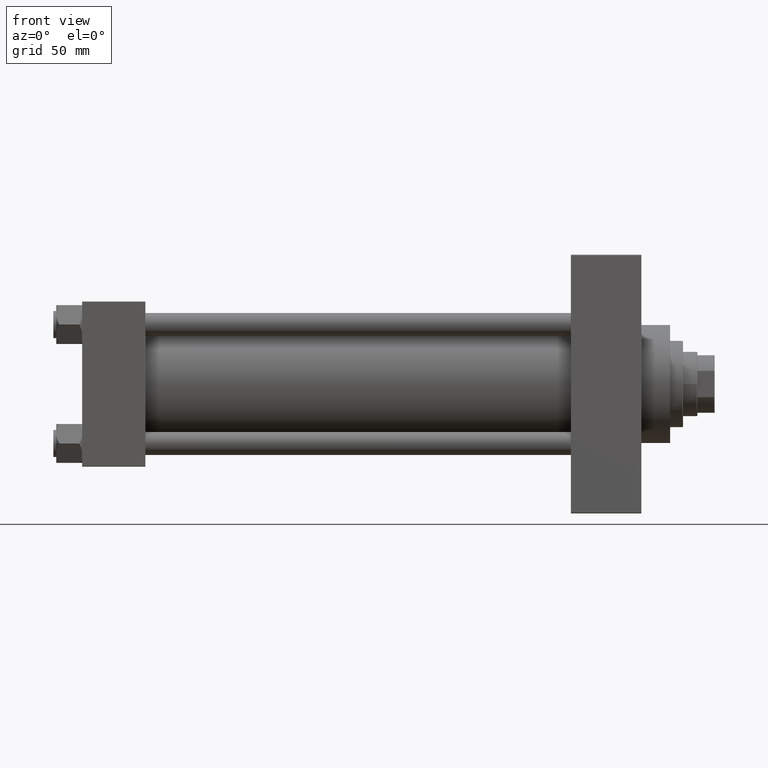
[diagram: clean part render]
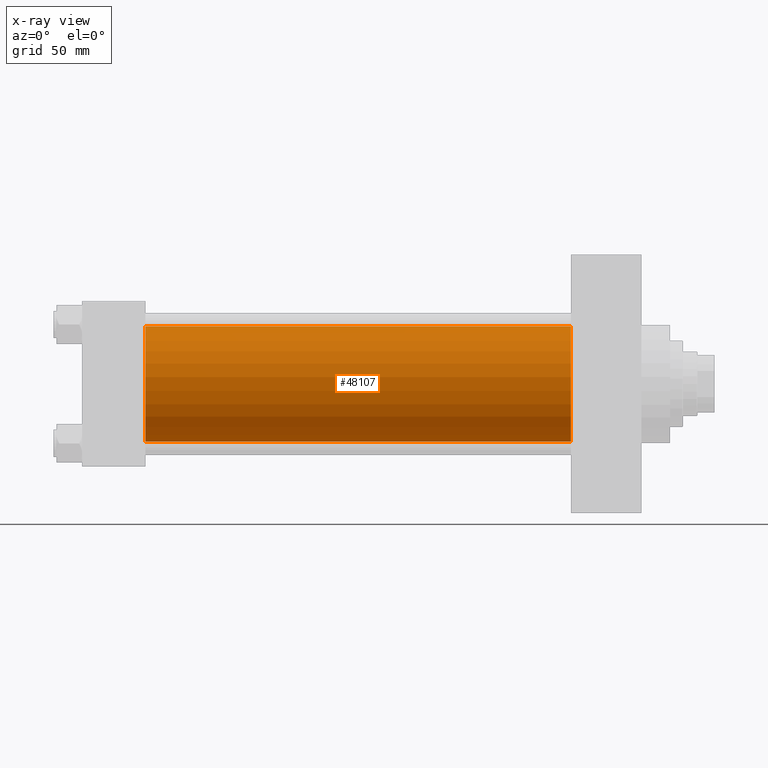
[diagram: x-ray — body ghosted, one internal face saturated and labeled with its STEP entity id]
A machine part, front view, then the same camera in x-ray: the body is ghosted and one INTERNAL B-rep face — a face not visible from any outside direction — is saturated and labeled: STEP entity #48107.
In plain terms, the highlighted cylindrical surface (partial cylindrical patch) has radius 40 mm, axis along (-1, -0, -0).
Its self-contained STEP definition (entity closure, byte-faithful):
#1495 = LINE ( 'NONE', #9824, #8665 ) ;
#3901 = CIRCLE ( 'NONE', #16797, 40.00000000000000000 ) ;
#3945 = CIRCLE ( 'NONE', #38523, 40.00000000000000000 ) ;
#3998 = CARTESIAN_POINT ( 'NONE',  ( 44.00000000000000000, -2.602085213965210642E-15, 0.000000000000000000 ) ) ;
#4036 = FACE_OUTER_BOUND ( 'NONE', #24165, .T. ) ;
#5162 = EDGE_CURVE ( 'NONE', #13358, #20477, #1495, .T. ) ;
#6267 = VERTEX_POINT ( 'NONE', #38922 ) ;
#8035 = CARTESIAN_POINT ( 'NONE',  ( 339.9999999999999432, -2.602085213965210642E-15, 40.00000000000000000 ) ) ;
#8146 = EDGE_CURVE ( 'NONE', #6267, #20477, #3945, .T. ) ;
#8530 = ORIENTED_EDGE ( 'NONE', *, *, #46573, .F. ) ;
#8665 = VECTOR ( 'NONE', #22158, 1000.000000000000000 ) ;
#9824 = CARTESIAN_POINT ( 'NONE',  ( 339.9999999999999432, 2.296501982624201990E-15, -40.00000000000000000 ) ) ;
#10241 = EDGE_CURVE ( 'NONE', #25499, #13358, #3901, .T. ) ;
#13358 = VERTEX_POINT ( 'NONE', #40729 ) ;
#13974 = DIRECTION ( 'NONE',  ( 0.000000000000000000, 0.000000000000000000, -1.000000000000000000 ) ) ;
#14217 = CARTESIAN_POINT ( 'NONE',  ( 339.9999999999999432, -2.602085213965210642E-15, 0.000000000000000000 ) ) ;
#15113 = LINE ( 'NONE', #8035, #39460 ) ;
#16744 = CARTESIAN_POINT ( 'NONE',  ( 339.9999999999999432, -2.602085213965210642E-15, 40.00000000000000000 ) ) ;
#16797 = AXIS2_PLACEMENT_3D ( 'NONE', #14217, #44417, #13974 ) ;
#20477 = VERTEX_POINT ( 'NONE', #45318 ) ;
#22158 = DIRECTION ( 'NONE',  ( -1.000000000000000000, -0.000000000000000000, -0.000000000000000000 ) ) ;
#23407 = DIRECTION ( 'NONE',  ( -1.000000000000000000, -0.000000000000000000, -0.000000000000000000 ) ) ;
#23705 = CARTESIAN_POINT ( 'NONE',  ( 339.9999999999999432, -2.602085213965210642E-15, 0.000000000000000000 ) ) ;
#24165 = EDGE_LOOP ( 'NONE', ( #25068, #42086, #48778, #8530 ) ) ;
#24212 = CYLINDRICAL_SURFACE ( 'NONE', #29086, 40.00000000000000000 ) ;
#25068 = ORIENTED_EDGE ( 'NONE', *, *, #10241, .T. ) ;
#25499 = VERTEX_POINT ( 'NONE', #16744 ) ;
#26939 = DIRECTION ( 'NONE',  ( 1.000000000000000000, 0.000000000000000000, 0.000000000000000000 ) ) ;
#27715 = DIRECTION ( 'NONE',  ( 0.000000000000000000, 0.000000000000000000, 1.000000000000000000 ) ) ;
#27921 = DIRECTION ( 'NONE',  ( 0.000000000000000000, 0.000000000000000000, -1.000000000000000000 ) ) ;
#29086 = AXIS2_PLACEMENT_3D ( 'NONE', #23705, #31971, #27715 ) ;
#31971 = DIRECTION ( 'NONE',  ( -1.000000000000000000, -0.000000000000000000, -0.000000000000000000 ) ) ;
#38523 = AXIS2_PLACEMENT_3D ( 'NONE', #3998, #26939, #27921 ) ;
#38922 = CARTESIAN_POINT ( 'NONE',  ( 44.00000000000000000, -2.602085213965210642E-15, 40.00000000000000000 ) ) ;
#39460 = VECTOR ( 'NONE', #23407, 1000.000000000000000 ) ;
#40729 = CARTESIAN_POINT ( 'NONE',  ( 339.9999999999999432, 2.296501982624201990E-15, -40.00000000000000000 ) ) ;
#42086 = ORIENTED_EDGE ( 'NONE', *, *, #5162, .T. ) ;
#44417 = DIRECTION ( 'NONE',  ( 1.000000000000000000, 0.000000000000000000, 0.000000000000000000 ) ) ;
#45318 = CARTESIAN_POINT ( 'NONE',  ( 44.00000000000000000, 2.296501982624201990E-15, -40.00000000000000000 ) ) ;
#46573 = EDGE_CURVE ( 'NONE', #25499, #6267, #15113, .T. ) ;
#48107 = ADVANCED_FACE ( 'NONE', ( #4036 ), #24212, .F. ) ;
#48778 = ORIENTED_EDGE ( 'NONE', *, *, #8146, .F. ) ;